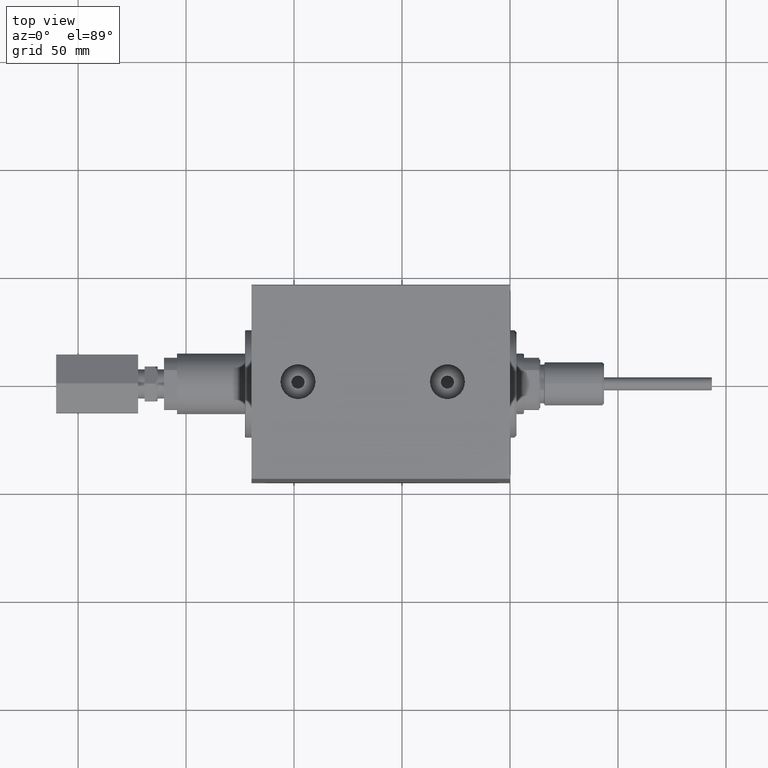
[diagram: clean part render]
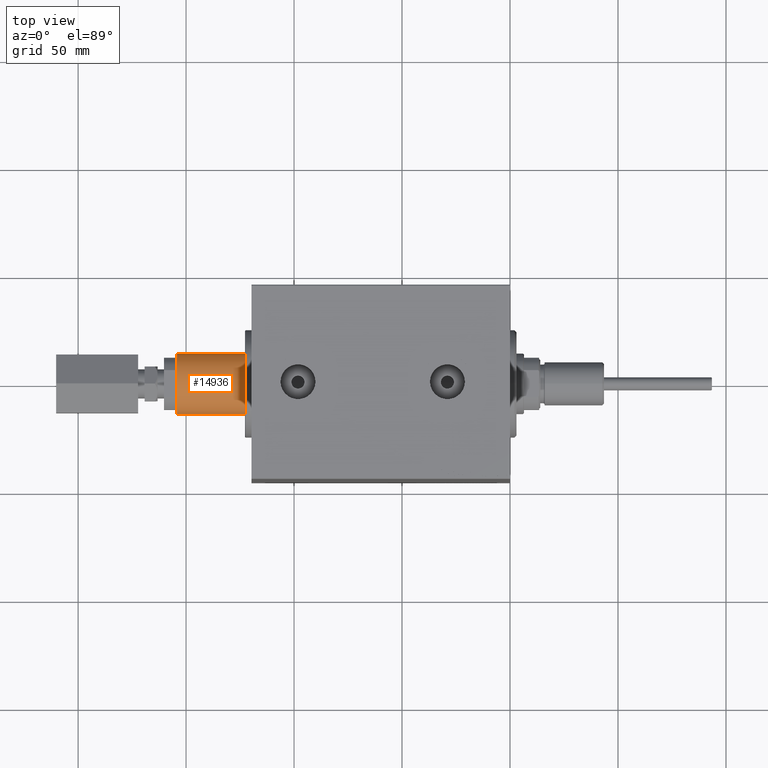
[diagram: same view with one face highlighted and labeled with its STEP entity id]
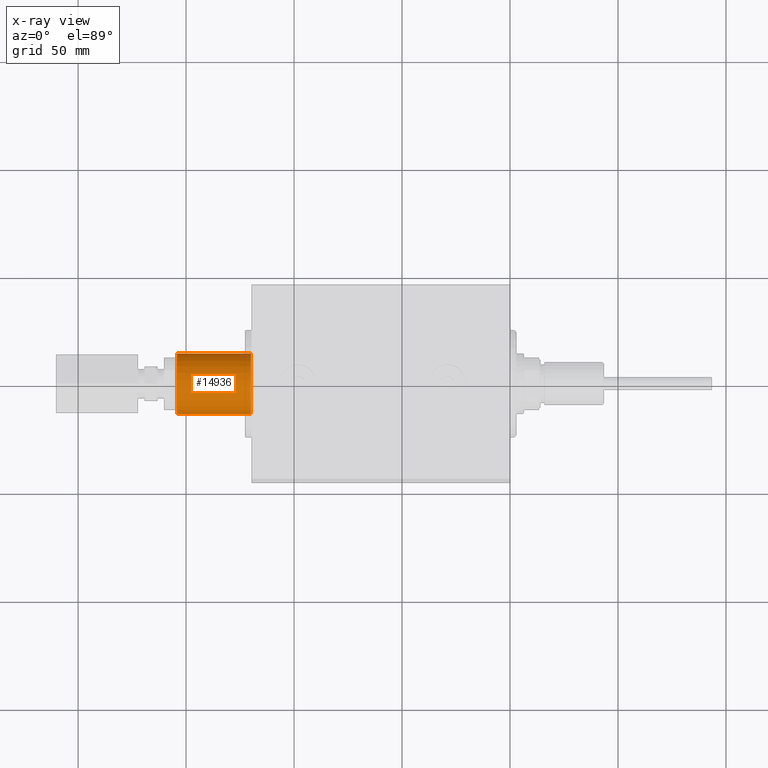
[diagram: x-ray of the same camera — body ghosted, the highlighted face saturated]
A machine part, top view. The second image highlights one B-rep face of the part: STEP entity #14936.
The next image is the same camera in x-ray: the body ghosted, the highlighted face saturated — about 0% of this face is hidden behind the body in this view.
In plain terms, the highlighted cylindrical surface (edge-blend (fillet) strip) has radius 14 mm, axis along (1, 0, 0).
Its self-contained STEP definition (entity closure, byte-faithful):
#660 = DIRECTION ( 'NONE',  ( -1.000000000000000000, -0.000000000000000000, -0.000000000000000000 ) ) ;
#899 = LINE ( 'NONE', #42350, #46187 ) ;
#1106 = CARTESIAN_POINT ( 'NONE',  ( 0.3000000000000085931, 0.000000000000000000, 13.99999999999999822 ) ) ;
#1922 = VERTEX_POINT ( 'NONE', #10142 ) ;
#4633 = EDGE_CURVE ( 'NONE', #33459, #14055, #899, .T. ) ;
#4913 = DIRECTION ( 'NONE',  ( 0.000000000000000000, 0.000000000000000000, -1.000000000000000000 ) ) ;
#5214 = EDGE_CURVE ( 'NONE', #13322, #14055, #42414, .T. ) ;
#6519 = CARTESIAN_POINT ( 'NONE',  ( 34.50000000000000000, 0.000000000000000000, 13.99999999999999822 ) ) ;
#7453 = ORIENTED_EDGE ( 'NONE', *, *, #47285, .F. ) ;
#7568 = EDGE_LOOP ( 'NONE', ( #48562, #7453, #8245, #23336 ) ) ;
#8245 = ORIENTED_EDGE ( 'NONE', *, *, #24036, .T. ) ;
#10142 = CARTESIAN_POINT ( 'NONE',  ( 34.50000000000000000, 0.000000000000000000, 13.99999999999999822 ) ) ;
#12530 = CIRCLE ( 'NONE', #23550, 13.99999999999999822 ) ;
#13322 = VERTEX_POINT ( 'NONE', #1106 ) ;
#14055 = VERTEX_POINT ( 'NONE', #31582 ) ;
#14176 = CARTESIAN_POINT ( 'NONE',  ( 34.50000000000000000, 0.000000000000000000, 0.000000000000000000 ) ) ;
#14936 = ADVANCED_FACE ( 'NONE', ( #30157 ), #45684, .T. ) ;
#15597 = AXIS2_PLACEMENT_3D ( 'NONE', #39193, #35000, #4913 ) ;
#19028 = DIRECTION ( 'NONE',  ( 0.000000000000000000, 0.000000000000000000, 1.000000000000000000 ) ) ;
#22258 = DIRECTION ( 'NONE',  ( -1.000000000000000000, -0.000000000000000000, -0.000000000000000000 ) ) ;
#23336 = ORIENTED_EDGE ( 'NONE', *, *, #5214, .T. ) ;
#23550 = AXIS2_PLACEMENT_3D ( 'NONE', #14176, #48198, #40815 ) ;
#24036 = EDGE_CURVE ( 'NONE', #1922, #13322, #44488, .T. ) ;
#29047 = CARTESIAN_POINT ( 'NONE',  ( 34.50000000000000000, 1.714505518806294441E-15, -13.99999999999999822 ) ) ;
#30157 = FACE_OUTER_BOUND ( 'NONE', #7568, .T. ) ;
#30644 = AXIS2_PLACEMENT_3D ( 'NONE', #41751, #22258, #19028 ) ;
#31582 = CARTESIAN_POINT ( 'NONE',  ( 0.3000000000000085931, 1.714505518806294441E-15, -13.99999999999999822 ) ) ;
#32903 = DIRECTION ( 'NONE',  ( -1.000000000000000000, -0.000000000000000000, -0.000000000000000000 ) ) ;
#33459 = VERTEX_POINT ( 'NONE', #29047 ) ;
#35000 = DIRECTION ( 'NONE',  ( 1.000000000000000000, -0.000000000000000000, -0.000000000000000000 ) ) ;
#39193 = CARTESIAN_POINT ( 'NONE',  ( 0.3000000000000085931, 0.000000000000000000, 0.000000000000000000 ) ) ;
#40815 = DIRECTION ( 'NONE',  ( 0.000000000000000000, 0.000000000000000000, -1.000000000000000000 ) ) ;
#41751 = CARTESIAN_POINT ( 'NONE',  ( 34.50000000000000000, 0.000000000000000000, 0.000000000000000000 ) ) ;
#42350 = CARTESIAN_POINT ( 'NONE',  ( 34.50000000000000000, 1.714505518806294441E-15, -13.99999999999999822 ) ) ;
#42414 = CIRCLE ( 'NONE', #15597, 13.99999999999999822 ) ;
#44488 = LINE ( 'NONE', #6519, #45126 ) ;
#45126 = VECTOR ( 'NONE', #32903, 1000.000000000000000 ) ;
#45684 = CYLINDRICAL_SURFACE ( 'NONE', #30644, 13.99999999999999822 ) ;
#46187 = VECTOR ( 'NONE', #660, 1000.000000000000000 ) ;
#47285 = EDGE_CURVE ( 'NONE', #1922, #33459, #12530, .T. ) ;
#48198 = DIRECTION ( 'NONE',  ( 1.000000000000000000, 0.000000000000000000, 0.000000000000000000 ) ) ;
#48562 = ORIENTED_EDGE ( 'NONE', *, *, #4633, .F. ) ;